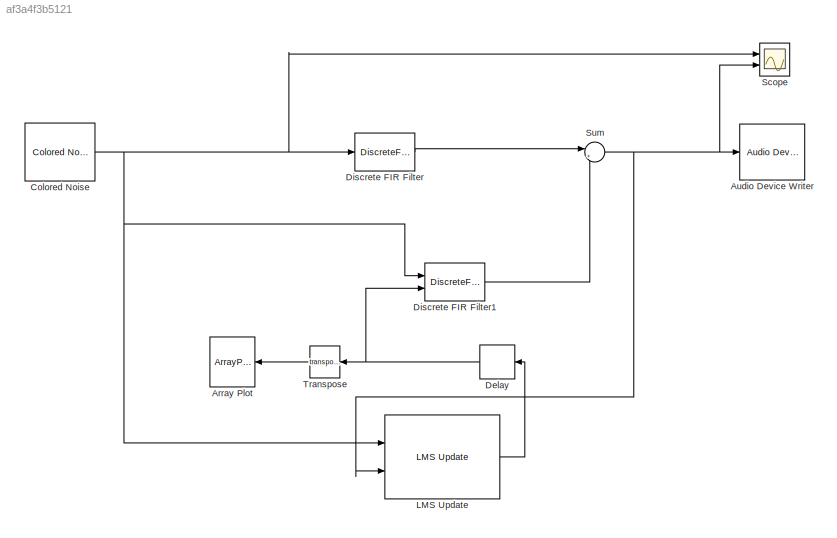
MODEL slx_af3a4f3b5121
KIND model
CONFIG AbsTol = auto
CONFIG EnableMultiTasking = off
CONFIG FixedStep = auto
CONFIG MaxStep = auto
CONFIG MinStep = auto
CONFIG RelTol = 1e-3
CONFIG SampleTimeConstraint = Unconstrained
CONFIG Solver = VariableStepAuto
CONFIG SolverName = VariableStepAuto
CONFIG StartTime = 0.0
CONFIG StopTime = 5
BLOCK [ArrayPlot] Array Plot
  Ports = [1]
  ScopeSpecificationString = dsp.scopes.ArrayPlotBlockSpecification('CurrentConfiguration', extmgr.ConfigurationSet(extmgr.Configuration('Core','General UI',true),extmgr.Configuration('Core','Source UI',true),extmgr.Configuration('Sources','WiredSimulink',true),extmgr.Configuration('Visuals','Array Plot',true,'DisplayPropertyDefaults',struct('MinYLimReal','-0.5125','MaxYLimReal','0.6125','YLabelReal','Amplitude','MinYLimMag',...<+1395ch>
BLOCK [Reference] Audio Device Writer  REF=dspsnks4/Audio Device
Writer
  Ports = [1]
  SourceBlock = dspsnks4/Audio Device\nWriter
  SourceProductBaseCode = DS
  SourceProductName = DSP System Toolbox
  SourceType = Audio Device Writer
BLOCK [Reference] Colored Noise  REF=dspsrcs4/Colored Noise
  Ports = [0, 1]
  SourceBlock = dspsrcs4/Colored Noise
  SourceProductBaseCode = DS
  SourceProductName = DSP System Toolbox
  SourceType = dsp.simulink.ColoredNoise
BLOCK [Delay] Delay
  DelayLength = 1
  InitialCondition = 0
  InputPortMap = u0
  Ports = [1, 1]
BLOCK [DiscreteFir] Discrete FIR Filter
  Coefficients = [0.5 0.1 0.2 0.4 0 0 -0.125 0.3 0.5 0 0.075 -0.25 -0.4]
  InputPortMap = u0
  InputProcessing = Columns as channels (frame based)
  OutputPortMap = o0
  Ports = [1, 1]
BLOCK [DiscreteFir] Discrete FIR Filter1
  CoefSource = Input port
  InputPortMap = u0,u1
  InputProcessing = Columns as channels (frame based)
  OutputPortMap = o0
  Ports = [2, 1]
BLOCK [Reference] LMS Update  REF=dspadpt3/LMS Update
  Ports = [2, 1]
  SourceBlock = dspadpt3/LMS Update
  SourceProductBaseCode = DS
  SourceProductName = DSP System Toolbox
  SourceType = dsp.private.LMSUpdate
BLOCK [Scope] Scope
  Floating = off
  NumInputPorts = 2
  Ports = [2]
  ScopeSpecificationString = Simulink.scopes.TimeScopeBlockCfg('CurrentConfiguration', extmgr.ConfigurationSet(extmgr.Configuration('Core','General UI',true),extmgr.Configuration('Core','Source UI',true),extmgr.Configuration('Sources','WiredSimulink',true),extmgr.Configuration('Visuals','Time Domain',true,'SerializedDisplays',{struct('MinYLimReal','-8.89767','MaxYLimReal','9.16184','YLabelReal','','MinYLimMag','0.00000','MaxY...<+1402ch>
BLOCK [Sum] Sum
  IconShape = round
  InputSameDT = off
  Inputs = |+-
  OutDataTypeStr = Inherit: Inherit via internal rule
  Ports = [2, 1]
  SaturateOnIntegerOverflow = off
BLOCK [Math] Transpose
  Operator = transpose
  Ports = [1, 1]
  SignedPower = off
NET Colored Noise:1 -> Discrete FIR Filter1:1, Discrete FIR Filter:1, LMS Update:1, Scope:1
NET Delay:1 -> Discrete FIR Filter1:2, Transpose:1
LINE Discrete FIR Filter1:1 -> Sum:2
LINE Discrete FIR Filter:1 -> Sum:1
LINE LMS Update:1 -> Delay:1
NET Sum:1 -> Audio Device Writer:1, LMS Update:2, Scope:2
LINE Transpose:1 -> Array Plot:1
note: NET lines group one-source signal fan-out (src -> all destinations, sorted); 1:1 wires keep LINE
